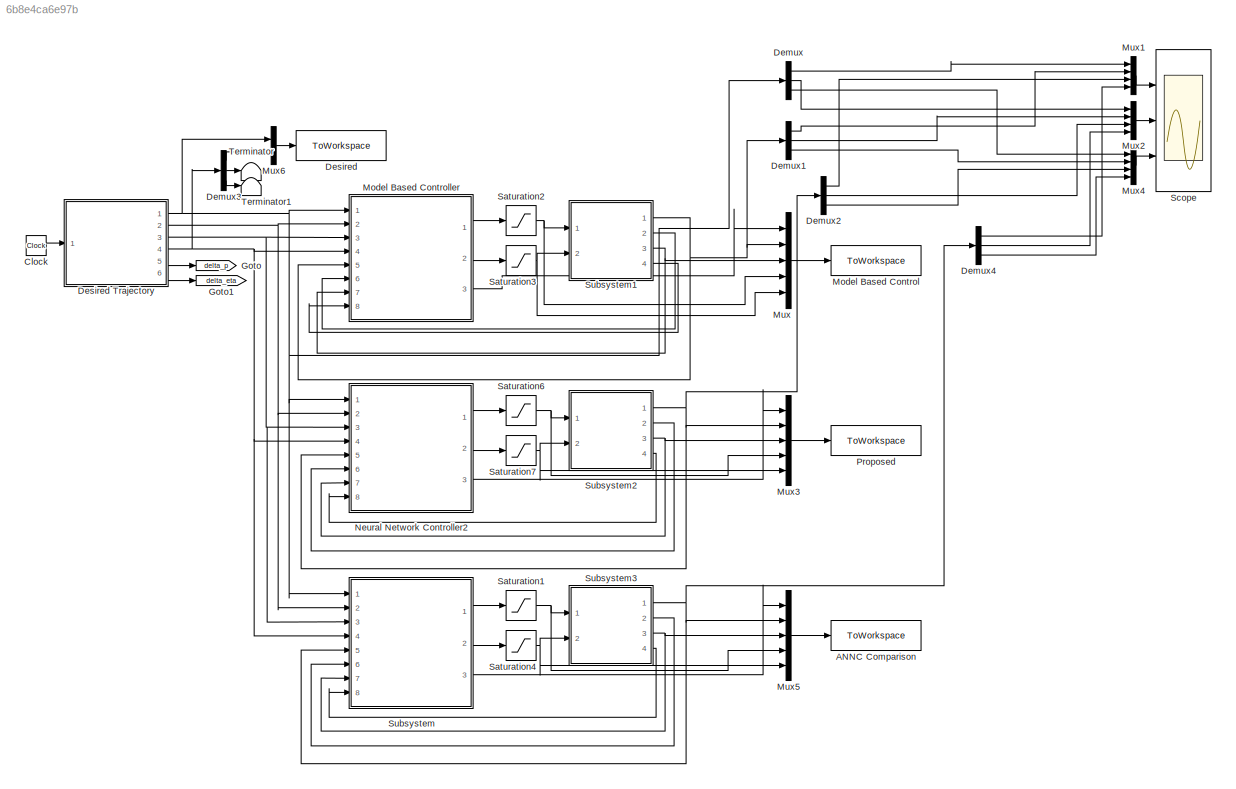
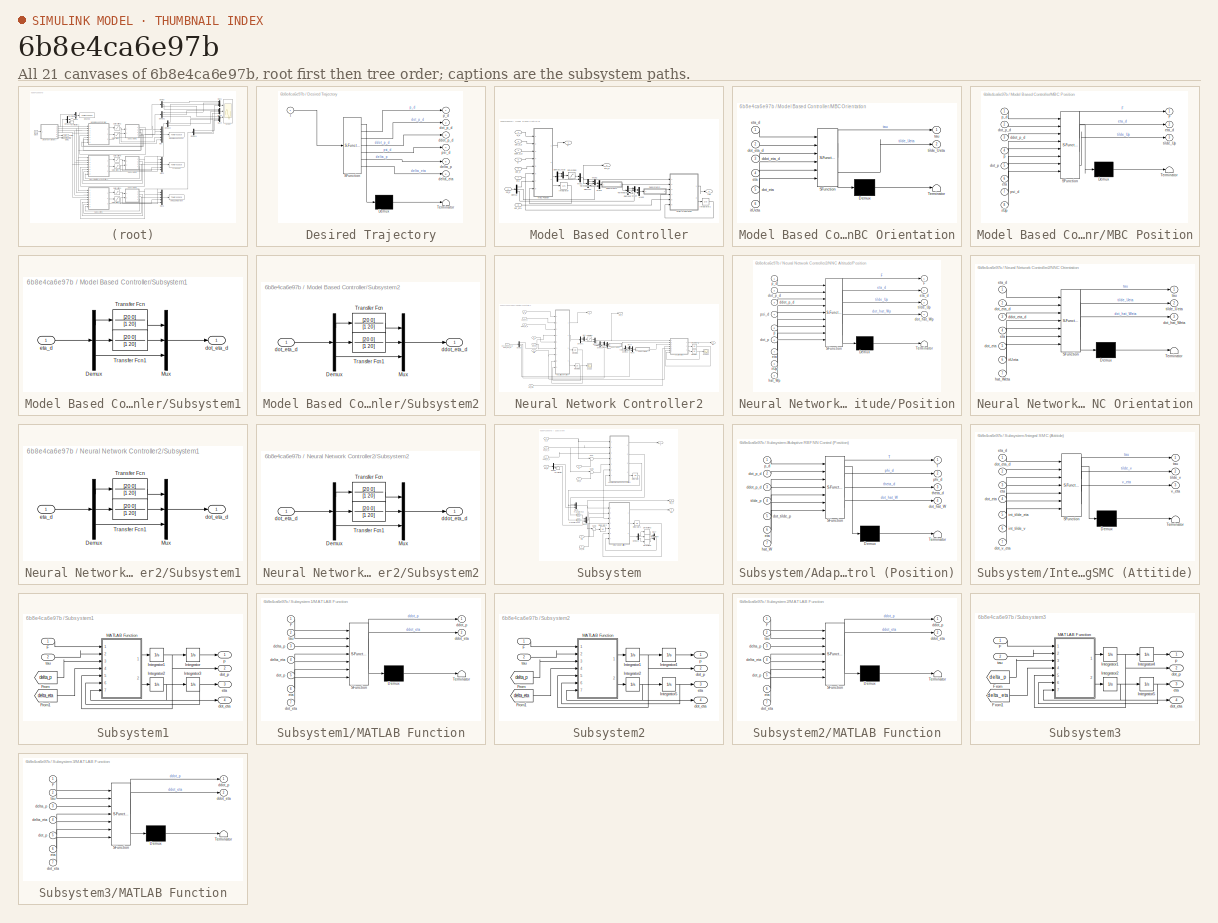
[diagram: thumbnail index - all 21 canvases of the model, root first then tree order]
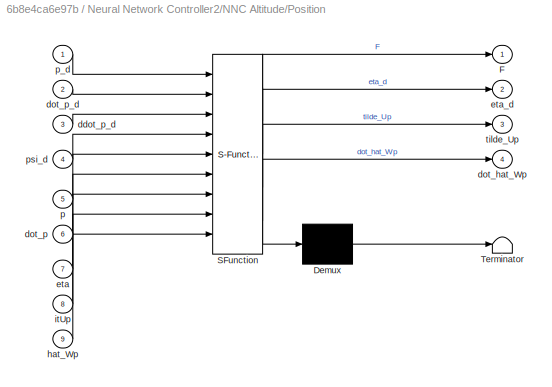
MODEL slx_6b8e4ca6e97b
KIND model
CONFIG AbsTol = auto
CONFIG EnableMultiTasking = off
CONFIG FixedStep = 1e-3
CONFIG MaxStep = auto
CONFIG MinStep = auto
CONFIG RelTol = 1e-3
CONFIG SampleTimeConstraint = Unconstrained
CONFIG SolverName = ode4
CONFIG StartTime = 0.0
CONFIG StopTime = 100
BLOCK [ToWorkspace] ANNC Comparison
  FixptAsFi = on
  MaxDataPoints = inf
  Ports = [1]
  SampleTime = -1
  SaveFormat = Structure With Time
  VariableName = ANNC_1
BLOCK [Clock] Clock
BLOCK [Demux] Demux
  Outputs = 3
  Ports = [1, 3]
BLOCK [Demux] Demux1
  Outputs = 3
  Ports = [1, 3]
BLOCK [Demux] Demux2
  Outputs = 3
  Ports = [1, 3]
BLOCK [Demux] Demux3
  Outputs = 3
  Ports = [1, 3]
BLOCK [Demux] Demux4
  Outputs = 3
  Ports = [1, 3]
BLOCK [ToWorkspace] Desired
  FixptAsFi = on
  MaxDataPoints = inf
  Ports = [1]
  SampleTime = -1
  SaveFormat = Structure With Time
  VariableName = Desired
BLOCK [SubSystem] Desired Trajectory
  ErrorFcn = Stateflow.Translate.translate
  PermitHierarchicalResolution = ExplicitOnly
  Ports = [1, 6]
  RequestExecContextInheritance = off
  SFBlockType = MATLAB Function
  TreatAsAtomicUnit = on
BLOCK [Demux] Desired Trajectory/ Demux 
  Outputs = 1
  Ports = [1, 1]
BLOCK [S-Function] Desired Trajectory/ SFunction 
  EnableBusSupport = on
  FunctionName = sf_sfun
  PortCounts = [1 7]
  Ports = [1, 7]
  SFcnIsStateOwnerBlock = off
  SFunctionDeploymentMode = off
  Tag = Stateflow S-Function 4
BLOCK [Terminator] Desired Trajectory/ Terminator 
BLOCK [Outport] Desired Trajectory/ddot_p_d
  Port = 3
BLOCK [Outport] Desired Trajectory/delta_eta
  Port = 6
BLOCK [Outport] Desired Trajectory/delta_p
  Port = 5
BLOCK [Outport] Desired Trajectory/dot_p_d
  Port = 2
BLOCK [Outport] Desired Trajectory/p_d
BLOCK [Outport] Desired Trajectory/psi_d
  Port = 4
BLOCK [Inport] Desired Trajectory/t
BLOCK [Goto] Goto
  GotoTag = delta_p
  TagVisibility = global
BLOCK [Goto] Goto1
  GotoTag = delta_eta
  TagVisibility = global
BLOCK [ToWorkspace] Model Based Control
  FixptAsFi = on
  MaxDataPoints = inf
  Ports = [1]
  SampleTime = -1
  SaveFormat = Structure With Time
  VariableName = MBC
BLOCK [SubSystem] Model Based Controller
  Ports = [8, 3]
  RequestExecContextInheritance = off
BLOCK [Demux] Model Based Controller/Demux
  Outputs = 3
  Ports = [1, 3]
BLOCK [Demux] Model Based Controller/Demux1
  Outputs = 3
  Ports = [1, 3]
BLOCK [Demux] Model Based Controller/Demux2
  Outputs = 3
  Ports = [1, 3]
BLOCK [Demux] Model Based Controller/Demux3
  Outputs = 3
  Ports = [1, 3]
BLOCK [Outport] Model Based Controller/F
BLOCK [Integrator] Model Based Controller/Integrator
  InitialCondition = [0;0;0]
  Ports = [1, 1]
BLOCK [Integrator] Model Based Controller/Integrator1
  InitialCondition = [0;0;0]
  Ports = [1, 1]
BLOCK [SubSystem] Model Based Controller/MBC Orientation
  ErrorFcn = Stateflow.Translate.translate
  PermitHierarchicalResolution = ExplicitOnly
  Ports = [6, 2]
  RequestExecContextInheritance = off
  SFBlockType = MATLAB Function
  TreatAsAtomicUnit = on
BLOCK [Demux] Model Based Controller/MBC Orientation/ Demux 
  Outputs = 1
  Ports = [1, 1]
BLOCK [S-Function] Model Based Controller/MBC Orientation/ SFunction 
  EnableBusSupport = on
  FunctionName = sf_sfun
  PortCounts = [6 3]
  Ports = [6, 3]
  SFcnIsStateOwnerBlock = off
  SFunctionDeploymentMode = off
  Tag = Stateflow S-Function 1
BLOCK [Terminator] Model Based Controller/MBC Orientation/ Terminator 
BLOCK [Inport] Model Based Controller/MBC Orientation/ddot_eta_d
  Port = 3
BLOCK [Inport] Model Based Controller/MBC Orientation/dot_eta
  Port = 5
BLOCK [Inport] Model Based Controller/MBC Orientation/dot_eta_d
  Port = 2
BLOCK [Inport] Model Based Controller/MBC Orientation/eta
  Port = 4
BLOCK [Inport] Model Based Controller/MBC Orientation/eta_d
BLOCK [Inport] Model Based Controller/MBC Orientation/itUeta
  Port = 6
BLOCK [Outport] Model Based Controller/MBC Orientation/tau
BLOCK [Outport] Model Based Controller/MBC Orientation/tilde_Ueta
  Port = 2
BLOCK [SubSystem] Model Based Controller/MBC Position
  ErrorFcn = Stateflow.Translate.translate
  PermitHierarchicalResolution = ExplicitOnly
  Ports = [8, 3]
  RequestExecContextInheritance = off
  SFBlockType = MATLAB Function
  TreatAsAtomicUnit = on
BLOCK [Demux] Model Based Controller/MBC Position/ Demux 
  Outputs = 1
  Ports = [1, 1]
BLOCK [S-Function] Model Based Controller/MBC Position/ SFunction 
  EnableBusSupport = on
  FunctionName = sf_sfun
  PortCounts = [8 4]
  Ports = [8, 4]
  SFcnIsStateOwnerBlock = off
  SFunctionDeploymentMode = off
  Tag = Stateflow S-Function 3
BLOCK [Terminator] Model Based Controller/MBC Position/ Terminator 
BLOCK [Outport] Model Based Controller/MBC Position/F
BLOCK [Inport] Model Based Controller/MBC Position/ddot_p_d
  Port = 3
BLOCK [Inport] Model Based Controller/MBC Position/dot_p
  Port = 5
BLOCK [Inport] Model Based Controller/MBC Position/dot_p_d
  Port = 2
BLOCK [Inport] Model Based Controller/MBC Position/eta
  Port = 6
BLOCK [Outport] Model Based Controller/MBC Position/eta_d
  Port = 2
BLOCK [Inport] Model Based Controller/MBC Position/itUp
  Port = 8
BLOCK [Inport] Model Based Controller/MBC Position/p
  Port = 4
BLOCK [Inport] Model Based Controller/MBC Position/p_d
BLOCK [Inport] Model Based Controller/MBC Position/psi_d
  Port = 7
BLOCK [Outport] Model Based Controller/MBC Position/tilde_Up
  Port = 3
BLOCK [Mux] Model Based Controller/Mux
  DisplayOption = bar
  Inputs = 2
  Ports = [2, 1]
BLOCK [Mux] Model Based Controller/Mux1
  DisplayOption = bar
  Inputs = 2
  Ports = [2, 1]
BLOCK [Mux] Model Based Controller/Mux2
  DisplayOption = bar
  Inputs = 2
  Ports = [2, 1]
BLOCK [Mux] Model Based Controller/Mux3
  DisplayOption = bar
  Inputs = 2
  Ports = [2, 1]
BLOCK [Mux] Model Based Controller/Mux4
  DisplayOption = bar
  Inputs = 2
  Ports = [2, 1]
BLOCK [Mux] Model Based Controller/Mux5
  DisplayOption = bar
  Inputs = 2
  Ports = [2, 1]
BLOCK [Saturate] Model Based Controller/Saturation
  LowerLimit = -20*pi/180
  UpperLimit = 20*pi/180
BLOCK [SubSystem] Model Based Controller/Subsystem1
  Ports = [1, 1]
  RequestExecContextInheritance = off
BLOCK [Demux] Model Based Controller/Subsystem1/Demux
  Outputs = 3
  Ports = [1, 3]
BLOCK [Mux] Model Based Controller/Subsystem1/Mux
  DisplayOption = bar
  Inputs = 3
  Ports = [3, 1]
BLOCK [TransferFcn] Model Based Controller/Subsystem1/Transfer Fcn
  Denominator = [1 20]
  Numerator = [20 0]
BLOCK [TransferFcn] Model Based Controller/Subsystem1/Transfer Fcn1
  Denominator = [1 20]
  Numerator = [20 0]
BLOCK [Outport] Model Based Controller/Subsystem1/dot_eta_d
BLOCK [Inport] Model Based Controller/Subsystem1/eta_d
  NameLocation = top
BLOCK [SubSystem] Model Based Controller/Subsystem2
  Ports = [1, 1]
  RequestExecContextInheritance = off
BLOCK [Demux] Model Based Controller/Subsystem2/Demux
  Outputs = 3
  Ports = [1, 3]
BLOCK [Mux] Model Based Controller/Subsystem2/Mux
  DisplayOption = bar
  Inputs = 3
  Ports = [3, 1]
BLOCK [TransferFcn] Model Based Controller/Subsystem2/Transfer Fcn
  Denominator = [1 20]
  Numerator = [20 0]
BLOCK [TransferFcn] Model Based Controller/Subsystem2/Transfer Fcn1
  Denominator = [1 20]
  Numerator = [20 0]
BLOCK [Outport] Model Based Controller/Subsystem2/ddot_eta_d
BLOCK [Inport] Model Based Controller/Subsystem2/dot_eta_d
  NameLocation = top
BLOCK [Terminator] Model Based Controller/Terminator
BLOCK [Terminator] Model Based Controller/Terminator1
BLOCK [Inport] Model Based Controller/ddot_p_d
  Port = 3
BLOCK [Inport] Model Based Controller/dot_eta
  Port = 8
BLOCK [Inport] Model Based Controller/dot_p
  Port = 6
BLOCK [Inport] Model Based Controller/dot_p_d
  Port = 2
BLOCK [Inport] Model Based Controller/eta
  Port = 7
BLOCK [Outport] Model Based Controller/eta_d
  Port = 3
BLOCK [Inport] Model Based Controller/p
  Port = 5
BLOCK [Inport] Model Based Controller/p_d
BLOCK [Inport] Model Based Controller/psi_d
  Port = 4
BLOCK [Outport] Model Based Controller/tau
  Port = 2
BLOCK [Mux] Mux
  DisplayOption = bar
  Inputs = 5
  Ports = [5, 1]
BLOCK [Mux] Mux1
  DisplayOption = bar
  Ports = [4, 1]
BLOCK [Mux] Mux2
  DisplayOption = bar
  Ports = [4, 1]
BLOCK [Mux] Mux3
  DisplayOption = bar
  Inputs = 5
  Ports = [5, 1]
BLOCK [Mux] Mux4
  DisplayOption = bar
  Ports = [4, 1]
BLOCK [Mux] Mux5
  DisplayOption = bar
  Inputs = 5
  Ports = [5, 1]
BLOCK [Mux] Mux6
  DisplayOption = bar
  Inputs = 2
  Ports = [2, 1]
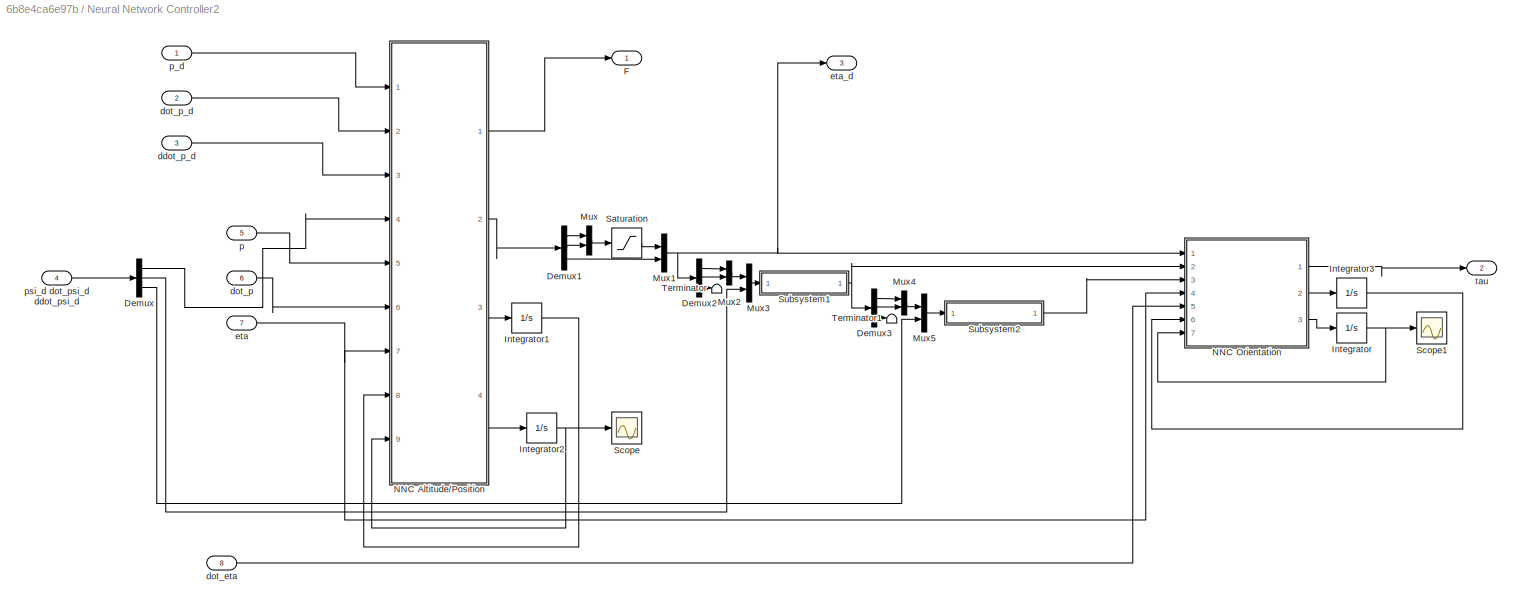
BLOCK [SubSystem] Neural Network Controller2
  Ports = [8, 3]
  RequestExecContextInheritance = off
BLOCK [Demux] Neural Network Controller2/Demux
  Outputs = 3
  Ports = [1, 3]
BLOCK [Demux] Neural Network Controller2/Demux1
  Outputs = 3
  Ports = [1, 3]
BLOCK [Demux] Neural Network Controller2/Demux2
  Outputs = 3
  Ports = [1, 3]
BLOCK [Demux] Neural Network Controller2/Demux3
  Outputs = 3
  Ports = [1, 3]
BLOCK [Outport] Neural Network Controller2/F
BLOCK [Integrator] Neural Network Controller2/Integrator
  InitialCondition = zeros(10,3)
  Ports = [1, 1]
BLOCK [Integrator] Neural Network Controller2/Integrator1
  InitialCondition = [0;0;0]
  Ports = [1, 1]
BLOCK [Integrator] Neural Network Controller2/Integrator2
  InitialCondition = zeros(10,3)
  Ports = [1, 1]
BLOCK [Integrator] Neural Network Controller2/Integrator3
  InitialCondition = [0;0;0]
  Ports = [1, 1]
BLOCK [Mux] Neural Network Controller2/Mux
  DisplayOption = bar
  Inputs = 2
  Ports = [2, 1]
BLOCK [Mux] Neural Network Controller2/Mux1
  DisplayOption = bar
  Inputs = 2
  Ports = [2, 1]
BLOCK [Mux] Neural Network Controller2/Mux2
  DisplayOption = bar
  Inputs = 2
  Ports = [2, 1]
BLOCK [Mux] Neural Network Controller2/Mux3
  DisplayOption = bar
  Inputs = 2
  Ports = [2, 1]
BLOCK [Mux] Neural Network Controller2/Mux4
  DisplayOption = bar
  Inputs = 2
  Ports = [2, 1]
BLOCK [Mux] Neural Network Controller2/Mux5
  DisplayOption = bar
  Inputs = 2
  Ports = [2, 1]
BLOCK [SubSystem] Neural Network Controller2/NNC Altitude//Position
  ErrorFcn = Stateflow.Translate.translate
  PermitHierarchicalResolution = ExplicitOnly
  Ports = [9, 4]
  RequestExecContextInheritance = off
  SFBlockType = MATLAB Function
  TreatAsAtomicUnit = on
BLOCK [Demux] Neural Network Controller2/NNC Altitude//Position/ Demux 
  Outputs = 1
  Ports = [1, 1]
BLOCK [S-Function] Neural Network Controller2/NNC Altitude//Position/ SFunction 
  EnableBusSupport = on
  FunctionName = sf_sfun
  PortCounts = [9 5]
  Ports = [9, 5]
  SFcnIsStateOwnerBlock = off
  SFunctionDeploymentMode = off
  Tag = Stateflow S-Function 11
BLOCK [Terminator] Neural Network Controller2/NNC Altitude//Position/ Terminator 
BLOCK [Outport] Neural Network Controller2/NNC Altitude//Position/F
BLOCK [Inport] Neural Network Controller2/NNC Altitude//Position/ddot_p_d
  Port = 3
BLOCK [Outport] Neural Network Controller2/NNC Altitude//Position/dot_hat_Wp
  Port = 4
BLOCK [Inport] Neural Network Controller2/NNC Altitude//Position/dot_p
  Port = 6
BLOCK [Inport] Neural Network Controller2/NNC Altitude//Position/dot_p_d
  Port = 2
BLOCK [Inport] Neural Network Controller2/NNC Altitude//Position/eta
  Port = 7
BLOCK [Outport] Neural Network Controller2/NNC Altitude//Position/eta_d
  Port = 2
BLOCK [Inport] Neural Network Controller2/NNC Altitude//Position/hat_Wp
  Port = 9
BLOCK [Inport] Neural Network Controller2/NNC Altitude//Position/itUp
  Port = 8
BLOCK [Inport] Neural Network Controller2/NNC Altitude//Position/p
  Port = 5
BLOCK [Inport] Neural Network Controller2/NNC Altitude//Position/p_d
BLOCK [Inport] Neural Network Controller2/NNC Altitude//Position/psi_d
  Port = 4
BLOCK [Outport] Neural Network Controller2/NNC Altitude//Position/tilde_Up
  Port = 3
BLOCK [SubSystem] Neural Network Controller2/NNC Orientation
  ErrorFcn = Stateflow.Translate.translate
  PermitHierarchicalResolution = ExplicitOnly
  Ports = [7, 3]
  RequestExecContextInheritance = off
  SFBlockType = MATLAB Function
  TreatAsAtomicUnit = on
BLOCK [Demux] Neural Network Controller2/NNC Orientation/ Demux 
  Outputs = 1
  Ports = [1, 1]
BLOCK [S-Function] Neural Network Controller2/NNC Orientation/ SFunction 
  EnableBusSupport = on
  FunctionName = sf_sfun
  PortCounts = [7 4]
  Ports = [7, 4]
  SFcnIsStateOwnerBlock = off
  SFunctionDeploymentMode = off
  Tag = Stateflow S-Function 12
BLOCK [Terminator] Neural Network Controller2/NNC Orientation/ Terminator 
BLOCK [Inport] Neural Network Controller2/NNC Orientation/ddot_eta_d
  Port = 3
BLOCK [Inport] Neural Network Controller2/NNC Orientation/dot_eta
  Port = 5
BLOCK [Inport] Neural Network Controller2/NNC Orientation/dot_eta_d
  Port = 2
BLOCK [Outport] Neural Network Controller2/NNC Orientation/dot_hat_Weta
  Port = 3
BLOCK [Inport] Neural Network Controller2/NNC Orientation/eta
  Port = 4
BLOCK [Inport] Neural Network Controller2/NNC Orientation/eta_d
BLOCK [Inport] Neural Network Controller2/NNC Orientation/hat_Weta
  Port = 7
BLOCK [Inport] Neural Network Controller2/NNC Orientation/itUeta
  Port = 6
BLOCK [Outport] Neural Network Controller2/NNC Orientation/tau
BLOCK [Outport] Neural Network Controller2/NNC Orientation/tilde_Ueta
  Port = 2
BLOCK [Saturate] Neural Network Controller2/Saturation
  LowerLimit = -20*pi/180
  UpperLimit = 20*pi/180
BLOCK [Scope] Neural Network Controller2/Scope
  Floating = off
  NumInputPorts = 1
  Ports = [1]
  ScopeSpecificationString = Simulink.scopes.TimeScopeBlockCfg('CurrentConfiguration', extmgr.ConfigurationSet(extmgr.Configuration('Core','General UI',true),extmgr.Configuration('Core','Source UI',true),extmgr.Configuration('Sources','WiredSimulink',true),extmgr.Configuration('Visuals','Time Domain',true,'SerializedDisplays',{struct('MinYLimReal','-0.42215','MaxYLimReal','0.43731','YLabelReal','','MinYLimMag','0.00000','MaxY...<+1847ch>
BLOCK [Scope] Neural Network Controller2/Scope1
  Floating = off
  NumInputPorts = 1
  Ports = [1]
  ScopeSpecificationString = Simulink.scopes.TimeScopeBlockCfg('CurrentConfiguration', extmgr.ConfigurationSet(extmgr.Configuration('Core','General UI',true),extmgr.Configuration('Core','Source UI',true),extmgr.Configuration('Sources','WiredSimulink',true,'DataLoggingVariableName','ScopeData1'),extmgr.Configuration('Visuals','Time Domain',true,'SerializedDisplays',{struct('MinYLimReal','-0.40705','MaxYLimReal','0.40572','YLab...<+1891ch>
BLOCK [SubSystem] Neural Network Controller2/Subsystem1
  Ports = [1, 1]
  RequestExecContextInheritance = off
BLOCK [Demux] Neural Network Controller2/Subsystem1/Demux
  Outputs = 3
  Ports = [1, 3]
BLOCK [Mux] Neural Network Controller2/Subsystem1/Mux
  DisplayOption = bar
  Inputs = 3
  Ports = [3, 1]
BLOCK [TransferFcn] Neural Network Controller2/Subsystem1/Transfer Fcn
  Denominator = [1 20]
  Numerator = [20 0]
BLOCK [TransferFcn] Neural Network Controller2/Subsystem1/Transfer Fcn1
  Denominator = [1 20]
  Numerator = [20 0]
BLOCK [Outport] Neural Network Controller2/Subsystem1/dot_eta_d
BLOCK [Inport] Neural Network Controller2/Subsystem1/eta_d
  NameLocation = top
BLOCK [SubSystem] Neural Network Controller2/Subsystem2
  Ports = [1, 1]
  RequestExecContextInheritance = off
BLOCK [Demux] Neural Network Controller2/Subsystem2/Demux
  Outputs = 3
  Ports = [1, 3]
BLOCK [Mux] Neural Network Controller2/Subsystem2/Mux
  DisplayOption = bar
  Inputs = 3
  Ports = [3, 1]
BLOCK [TransferFcn] Neural Network Controller2/Subsystem2/Transfer Fcn
  Denominator = [1 20]
  Numerator = [20 0]
BLOCK [TransferFcn] Neural Network Controller2/Subsystem2/Transfer Fcn1
  Denominator = [1 20]
  Numerator = [20 0]
BLOCK [Outport] Neural Network Controller2/Subsystem2/ddot_eta_d
BLOCK [Inport] Neural Network Controller2/Subsystem2/dot_eta_d
  NameLocation = top
BLOCK [Terminator] Neural Network Controller2/Terminator
BLOCK [Terminator] Neural Network Controller2/Terminator1
BLOCK [Inport] Neural Network Controller2/ddot_p_d
  Port = 3
BLOCK [Inport] Neural Network Controller2/dot_eta
  Port = 8
BLOCK [Inport] Neural Network Controller2/dot_p
  Port = 6
BLOCK [Inport] Neural Network Controller2/dot_p_d
  Port = 2
BLOCK [Inport] Neural Network Controller2/eta
  Port = 7
BLOCK [Outport] Neural Network Controller2/eta_d
  Port = 3
BLOCK [Inport] Neural Network Controller2/p
  Port = 5
BLOCK [Inport] Neural Network Controller2/p_d
  NameLocation = top
BLOCK [Inport] Neural Network Controller2/psi_d dot_psi_d ddot_psi_d
  Port = 4
BLOCK [Outport] Neural Network Controller2/tau
  Port = 2
BLOCK [ToWorkspace] Proposed
  FixptAsFi = on
  MaxDataPoints = inf
  Ports = [1]
  SampleTime = -1
  SaveFormat = Structure With Time
  VariableName = ANNC
BLOCK [Saturate] Saturation1
  LowerLimit = 0
  UpperLimit = 34.4
BLOCK [Saturate] Saturation2
  LowerLimit = 0
  UpperLimit = 34.4
BLOCK [Saturate] Saturation3
  LowerLimit = -1.72
  UpperLimit = 1.72
BLOCK [Saturate] Saturation4
  LowerLimit = -1.72
  UpperLimit = 1.72
BLOCK [Saturate] Saturation6
  LowerLimit = 0
  UpperLimit = 34.4
BLOCK [Saturate] Saturation7
  LowerLimit = -1.72
  UpperLimit = 1.72
BLOCK [Scope] Scope
  Floating = off
  NumInputPorts = 3
  Ports = [3]
  ScopeSpecificationString = Simulink.scopes.TimeScopeBlockCfg('CurrentConfiguration', extmgr.ConfigurationSet(extmgr.Configuration('Core','General UI',true),extmgr.Configuration('Core','Source UI',true),extmgr.Configuration('Sources','WiredSimulink',true,'DataLoggingVariableName','ScopeData1'),extmgr.Configuration('Visuals','Time Domain',true,'SerializedDisplays',{struct('MinYLimReal','-1.12182','MaxYLimReal','1.11256','YLab...<+2796ch>
BLOCK [SubSystem] Subsystem
  Ports = [8, 3]
  RequestExecContextInheritance = off
BLOCK [SubSystem] Subsystem/Adaptive RBFNN Control (Position)
  ErrorFcn = Stateflow.Translate.translate
  PermitHierarchicalResolution = ExplicitOnly
  Ports = [7, 4]
  RequestExecContextInheritance = off
  SFBlockType = MATLAB Function
  TreatAsAtomicUnit = on
BLOCK [Demux] Subsystem/Adaptive RBFNN Control (Position)/ Demux 
  Outputs = 1
  Ports = [1, 1]
BLOCK [S-Function] Subsystem/Adaptive RBFNN Control (Position)/ SFunction 
  EnableBusSupport = on
  FunctionName = sf_sfun
  PortCounts = [7 5]
  Ports = [7, 5]
  SFcnIsStateOwnerBlock = off
  SFunctionDeploymentMode = off
  Tag = Stateflow S-Function 5
BLOCK [Terminator] Subsystem/Adaptive RBFNN Control (Position)/ Terminator 
BLOCK [Outport] Subsystem/Adaptive RBFNN Control (Position)/T
  VectorParamsAs1DForOutWhenUnconnected = off
BLOCK [Inport] Subsystem/Adaptive RBFNN Control (Position)/ddot_p_d
  Port = 3
BLOCK [Outport] Subsystem/Adaptive RBFNN Control (Position)/dot_hat_W
  Port = 4
  VectorParamsAs1DForOutWhenUnconnected = off
BLOCK [Inport] Subsystem/Adaptive RBFNN Control (Position)/dot_p_d
  Port = 2
BLOCK [Inport] Subsystem/Adaptive RBFNN Control (Position)/dot_tilde_p
  Port = 5
BLOCK [Inport] Subsystem/Adaptive RBFNN Control (Position)/eta
  Port = 6
BLOCK [Inport] Subsystem/Adaptive RBFNN Control (Position)/hat_W
  Port = 7
BLOCK [Inport] Subsystem/Adaptive RBFNN Control (Position)/p_d
BLOCK [Outport] Subsystem/Adaptive RBFNN Control (Position)/phi_d
  Port = 2
  VectorParamsAs1DForOutWhenUnconnected = off
BLOCK [Outport] Subsystem/Adaptive RBFNN Control (Position)/theta_d
  Port = 3
  VectorParamsAs1DForOutWhenUnconnected = off
BLOCK [Inport] Subsystem/Adaptive RBFNN Control (Position)/tilde_p
  Port = 4
BLOCK [Demux] Subsystem/Demux
  Outputs = 3
  Ports = [1, 3]
BLOCK [Demux] Subsystem/Demux3
  Outputs = 3
  Ports = [1, 3]
BLOCK [Derivative] Subsystem/Derivative3
BLOCK [Derivative] Subsystem/Derivative4
BLOCK [Derivative] Subsystem/Derivative5
BLOCK [SubSystem] Subsystem/Integral SMC (Attitide)
  ErrorFcn = Stateflow.Translate.translate
  PermitHierarchicalResolution = ExplicitOnly
  Ports = [7, 3]
  RequestExecContextInheritance = off
  SFBlockType = MATLAB Function
  TreatAsAtomicUnit = on
BLOCK [Demux] Subsystem/Integral SMC (Attitide)/ Demux 
  Outputs = 1
  Ports = [1, 1]
BLOCK [S-Function] Subsystem/Integral SMC (Attitide)/ SFunction 
  EnableBusSupport = on
  FunctionName = sf_sfun
  PortCounts = [7 4]
  Ports = [7, 4]
  SFcnIsStateOwnerBlock = off
  SFunctionDeploymentMode = off
  Tag = Stateflow S-Function 6
BLOCK [Terminator] Subsystem/Integral SMC (Attitide)/ Terminator 
BLOCK [Inport] Subsystem/Integral SMC (Attitide)/dot_eta
  Port = 4
BLOCK [Inport] Subsystem/Integral SMC (Attitide)/dot_eta_d
  Port = 2
BLOCK [Inport] Subsystem/Integral SMC (Attitide)/dot_v_eta
  Port = 7
BLOCK [Inport] Subsystem/Integral SMC (Attitide)/eta
  Port = 3
BLOCK [Inport] Subsystem/Integral SMC (Attitide)/eta_d
BLOCK [Inport] Subsystem/Integral SMC (Attitide)/int_tilde_eta
  Port = 5
BLOCK [Inport] Subsystem/Integral SMC (Attitide)/int_tilde_v
  Port = 6
BLOCK [Outport] Subsystem/Integral SMC (Attitide)/tau
  VectorParamsAs1DForOutWhenUnconnected = off
BLOCK [Outport] Subsystem/Integral SMC (Attitide)/tilde_v
  Port = 2
  VectorParamsAs1DForOutWhenUnconnected = off
BLOCK [Outport] Subsystem/Integral SMC (Attitide)/v_eta
  Port = 3
  VectorParamsAs1DForOutWhenUnconnected = off
BLOCK [Integrator] Subsystem/Integrator
  InitialCondition = 0.005*ones(7,3)
  Ports = [1, 1]
BLOCK [Integrator] Subsystem/Integrator1
  InitialCondition = [0;0;0]
  Ports = [1, 1]
BLOCK [Integrator] Subsystem/Integrator2
  InitialCondition = [0;0;0]
  Ports = [1, 1]
BLOCK [Mux] Subsystem/Mux5
  DisplayOption = bar
  Inputs = 3
  Ports = [3, 1]
BLOCK [Mux] Subsystem/Mux6
  DisplayOption = bar
  Inputs = 3
  Ports = [3, 1]
BLOCK [Mux] Subsystem/Mux7
  DisplayOption = bar
  Inputs = 3
  Ports = [3, 1]
BLOCK [Sum] Subsystem/Sum
  Inputs = |+-
  Ports = [2, 1]
BLOCK [Sum] Subsystem/Sum1
  Inputs = |+-
  Ports = [2, 1]
BLOCK [Sum] Subsystem/Sum2
  Inputs = |+-
  Ports = [2, 1]
BLOCK [Outport] Subsystem/T
BLOCK [Terminator] Subsystem/Terminator
BLOCK [TransferFcn] Subsystem/Transfer Fcn
  Denominator = [1 20]
  Numerator = [20 0]
BLOCK [TransferFcn] Subsystem/Transfer Fcn1
  Denominator = [1 20]
  Numerator = [20 0]
BLOCK [Inport] Subsystem/ddot_p_d
  Port = 3
BLOCK [Inport] Subsystem/dot_eta
  Port = 8
BLOCK [Inport] Subsystem/dot_p
  Port = 6
BLOCK [Inport] Subsystem/dot_p_d
  Port = 2
BLOCK [Inport] Subsystem/eta
  Port = 7
BLOCK [Outport] Subsystem/eta_d
  Port = 3
BLOCK [Inport] Subsystem/p
  Port = 5
BLOCK [Inport] Subsystem/p_d
BLOCK [Inport] Subsystem/psi_d
  Port = 4
BLOCK [Outport] Subsystem/tau
  Port = 2
BLOCK [SubSystem] Subsystem1
  Ports = [2, 4]
  RequestExecContextInheritance = off
BLOCK [Inport] Subsystem1/F
BLOCK [From] Subsystem1/From
  GotoTag = delta_p
  TagVisibility = global
BLOCK [From] Subsystem1/From1
  GotoTag = delta_eta
  TagVisibility = global
BLOCK [Integrator] Subsystem1/Integrator
  InitialCondition = [0;0;0.3]
  LimitOutput = on
  LowerSaturationLimit = [-inf;-inf;0.3]
  Ports = [1, 1]
  UpperSaturationLimit = [inf;inf;inf]
BLOCK [Integrator] Subsystem1/Integrator1
  InitialCondition = [0;0;0]
  Ports = [1, 1]
BLOCK [Integrator] Subsystem1/Integrator2
  InitialCondition = [0;0;0]
  Ports = [1, 1]
BLOCK [Integrator] Subsystem1/Integrator3
  InitialCondition = [0;0;0]
  LimitOutput = on
  LowerSaturationLimit = [-pi/2; -pi/2; -inf]
  Ports = [1, 1]
  UpperSaturationLimit = [pi/2; pi/2; inf]
BLOCK [SubSystem] Subsystem1/MATLAB Function
  ErrorFcn = Stateflow.Translate.translate
  PermitHierarchicalResolution = ExplicitOnly
  Ports = [7, 2]
  RequestExecContextInheritance = off
  SFBlockType = MATLAB Function
  TreatAsAtomicUnit = on
BLOCK [Demux] Subsystem1/MATLAB Function/ Demux 
  Outputs = 1
  Ports = [1, 1]
BLOCK [S-Function] Subsystem1/MATLAB Function/ SFunction 
  EnableBusSupport = on
  FunctionName = sf_sfun
  PortCounts = [7 3]
  Ports = [7, 3]
  SFcnIsStateOwnerBlock = off
  SFunctionDeploymentMode = off
  Tag = Stateflow S-Function 2
BLOCK [Terminator] Subsystem1/MATLAB Function/ Terminator 
BLOCK [Inport] Subsystem1/MATLAB Function/F
BLOCK [Outport] Subsystem1/MATLAB Function/ddot_eta
  Port = 2
BLOCK [Outport] Subsystem1/MATLAB Function/ddot_p
BLOCK [Inport] Subsystem1/MATLAB Function/delta_eta
  Port = 4
BLOCK [Inport] Subsystem1/MATLAB Function/delta_p
  Port = 3
BLOCK [Inport] Subsystem1/MATLAB Function/dot_eta
  Port = 7
BLOCK [Inport] Subsystem1/MATLAB Function/dot_p
  Port = 5
BLOCK [Inport] Subsystem1/MATLAB Function/eta
  Port = 6
BLOCK [Inport] Subsystem1/MATLAB Function/tau
  Port = 2
BLOCK [Outport] Subsystem1/dot_eta
  Port = 4
BLOCK [Outport] Subsystem1/dot_p
  Port = 2
BLOCK [Outport] Subsystem1/eta
  Port = 3
BLOCK [Outport] Subsystem1/p
BLOCK [Inport] Subsystem1/tau
  Port = 2
BLOCK [SubSystem] Subsystem2
  Ports = [2, 4]
  RequestExecContextInheritance = off
BLOCK [Inport] Subsystem2/F
BLOCK [From] Subsystem2/From
  GotoTag = delta_p
  TagVisibility = global
BLOCK [From] Subsystem2/From1
  GotoTag = delta_eta
  TagVisibility = global
BLOCK [Integrator] Subsystem2/Integrator1
  InitialCondition = [0;0;0]
  Ports = [1, 1]
BLOCK [Integrator] Subsystem2/Integrator2
  InitialCondition = [0;0;0]
  Ports = [1, 1]
BLOCK [Integrator] Subsystem2/Integrator4
  InitialCondition = [0;0;0.3]
  LimitOutput = on
  LowerSaturationLimit = [-inf;-inf;0.3]
  Ports = [1, 1]
  UpperSaturationLimit = [inf;inf;inf]
BLOCK [Integrator] Subsystem2/Integrator5
  InitialCondition = [0;0;0]
  LimitOutput = on
  LowerSaturationLimit = [-pi/2; -pi/2; -inf]
  Ports = [1, 1]
  UpperSaturationLimit = [pi/2; pi/2; inf]
BLOCK [SubSystem] Subsystem2/MATLAB Function
  ErrorFcn = Stateflow.Translate.translate
  PermitHierarchicalResolution = ExplicitOnly
  Ports = [7, 2]
  RequestExecContextInheritance = off
  SFBlockType = MATLAB Function
  TreatAsAtomicUnit = on
BLOCK [Demux] Subsystem2/MATLAB Function/ Demux 
  Outputs = 1
  Ports = [1, 1]
BLOCK [S-Function] Subsystem2/MATLAB Function/ SFunction 
  EnableBusSupport = on
  FunctionName = sf_sfun
  PortCounts = [7 3]
  Ports = [7, 3]
  SFcnIsStateOwnerBlock = off
  SFunctionDeploymentMode = off
  Tag = Stateflow S-Function 13
BLOCK [Terminator] Subsystem2/MATLAB Function/ Terminator 
BLOCK [Inport] Subsystem2/MATLAB Function/F
BLOCK [Outport] Subsystem2/MATLAB Function/ddot_eta
  Port = 2
BLOCK [Outport] Subsystem2/MATLAB Function/ddot_p
BLOCK [Inport] Subsystem2/MATLAB Function/delta_eta
  Port = 4
BLOCK [Inport] Subsystem2/MATLAB Function/delta_p
  Port = 3
BLOCK [Inport] Subsystem2/MATLAB Function/dot_eta
  Port = 7
BLOCK [Inport] Subsystem2/MATLAB Function/dot_p
  Port = 5
BLOCK [Inport] Subsystem2/MATLAB Function/eta
  Port = 6
BLOCK [Inport] Subsystem2/MATLAB Function/tau
  Port = 2
BLOCK [Outport] Subsystem2/dot_eta
  Port = 4
BLOCK [Outport] Subsystem2/dot_p
  Port = 2
BLOCK [Outport] Subsystem2/eta
  Port = 3
BLOCK [Outport] Subsystem2/p
BLOCK [Inport] Subsystem2/tau
  Port = 2
BLOCK [SubSystem] Subsystem3
  Ports = [2, 4]
  RequestExecContextInheritance = off
BLOCK [Inport] Subsystem3/F
BLOCK [From] Subsystem3/From
  GotoTag = delta_p
  TagVisibility = global
BLOCK [From] Subsystem3/From1
  GotoTag = delta_eta
  TagVisibility = global
BLOCK [Integrator] Subsystem3/Integrator1
  InitialCondition = [0;0;0]
  Ports = [1, 1]
BLOCK [Integrator] Subsystem3/Integrator2
  InitialCondition = [0;0;0]
  Ports = [1, 1]
BLOCK [Integrator] Subsystem3/Integrator4
  InitialCondition = [0;0;0.3]
  LimitOutput = on
  LowerSaturationLimit = [-inf;-inf;0.3]
  Ports = [1, 1]
  UpperSaturationLimit = [inf;inf;inf]
BLOCK [Integrator] Subsystem3/Integrator5
  InitialCondition = [0;0;0]
  LimitOutput = on
  LowerSaturationLimit = [-pi/2; -pi/2; -inf]
  Ports = [1, 1]
  UpperSaturationLimit = [pi/2; pi/2; inf]
BLOCK [SubSystem] Subsystem3/MATLAB Function
  ErrorFcn = Stateflow.Translate.translate
  PermitHierarchicalResolution = ExplicitOnly
  Ports = [7, 2]
  RequestExecContextInheritance = off
  SFBlockType = MATLAB Function
  TreatAsAtomicUnit = on
BLOCK [Demux] Subsystem3/MATLAB Function/ Demux 
  Outputs = 1
  Ports = [1, 1]
BLOCK [S-Function] Subsystem3/MATLAB Function/ SFunction 
  EnableBusSupport = on
  FunctionName = sf_sfun
  PortCounts = [7 3]
  Ports = [7, 3]
  SFcnIsStateOwnerBlock = off
  SFunctionDeploymentMode = off
  Tag = Stateflow S-Function 7
BLOCK [Terminator] Subsystem3/MATLAB Function/ Terminator 
BLOCK [Inport] Subsystem3/MATLAB Function/F
BLOCK [Outport] Subsystem3/MATLAB Function/ddot_eta
  Port = 2
BLOCK [Outport] Subsystem3/MATLAB Function/ddot_p
BLOCK [Inport] Subsystem3/MATLAB Function/delta_eta
  Port = 4
BLOCK [Inport] Subsystem3/MATLAB Function/delta_p
  Port = 3
BLOCK [Inport] Subsystem3/MATLAB Function/dot_eta
  Port = 7
BLOCK [Inport] Subsystem3/MATLAB Function/dot_p
  Port = 5
BLOCK [Inport] Subsystem3/MATLAB Function/eta
  Port = 6
BLOCK [Inport] Subsystem3/MATLAB Function/tau
  Port = 2
BLOCK [Outport] Subsystem3/dot_eta
  Port = 4
BLOCK [Outport] Subsystem3/dot_p
  Port = 2
BLOCK [Outport] Subsystem3/eta
  Port = 3
BLOCK [Outport] Subsystem3/p
BLOCK [Inport] Subsystem3/tau
  Port = 2
BLOCK [Terminator] Terminator
BLOCK [Terminator] Terminator1
LINE Clock:1 -> Desired Trajectory:1
LINE Demux1:1 -> Mux1:2
LINE Demux1:2 -> Mux2:2
LINE Demux1:3 -> Mux4:2
LINE Demux2:1 -> Mux1:3
LINE Demux2:2 -> Mux2:3
LINE Demux2:3 -> Mux4:3
LINE Demux3:1 -> Mux6:2
LINE Demux3:2 -> Terminator:1
LINE Demux3:3 -> Terminator1:1
LINE Demux4:1 -> Mux1:4
LINE Demux4:2 -> Mux2:4
LINE Demux4:3 -> Mux4:4
LINE Demux:1 -> Mux1:1
LINE Demux:2 -> Mux2:1
LINE Demux:3 -> Mux4:1
NET Desired Trajectory:1 -> Demux:1, Model Based Controller:1, Mux6:1, Neural Network Controller2:1, Subsystem:1
NET Desired Trajectory:2 -> Model Based Controller:2, Neural Network Controller2:2, Subsystem:2
NET Desired Trajectory:3 -> Model Based Controller:3, Neural Network Controller2:3, Subsystem:3
NET Desired Trajectory:4 -> Demux3:1, Model Based Controller:4, Neural Network Controller2:4, Subsystem:4
LINE Desired Trajectory:5 -> Goto:1
LINE Desired Trajectory:6 -> Goto1:1
LINE Model Based Controller/Demux1:1 -> Model Based Controller/Mux:1
LINE Model Based Controller/Demux1:2 -> Model Based Controller/Mux:2
LINE Model Based Controller/Demux1:3 -> Model Based Controller/Mux1:2
LINE Model Based Controller/Demux2:1 -> Model Based Controller/Mux2:1
LINE Model Based Controller/Demux2:2 -> Model Based Controller/Mux2:2
LINE Model Based Controller/Demux2:3 -> Model Based Controller/Terminator:1
LINE Model Based Controller/Demux3:1 -> Model Based Controller/Mux4:1
LINE Model Based Controller/Demux3:2 -> Model Based Controller/Mux4:2
LINE Model Based Controller/Demux3:3 -> Model Based Controller/Terminator1:1
LINE Model Based Controller/Demux:1 -> Model Based Controller/MBC Position:7
LINE Model Based Controller/Demux:2 -> Model Based Controller/Mux3:2
LINE Model Based Controller/Demux:3 -> Model Based Controller/Mux5:2
LINE Model Based Controller/Integrator1:1 -> Model Based Controller/MBC Orientation:6
LINE Model Based Controller/Integrator:1 -> Model Based Controller/MBC Position:8
LINE Model Based Controller/MBC Orientation:1 -> Model Based Controller/tau:1
LINE Model Based Controller/MBC Orientation:2 -> Model Based Controller/Integrator1:1
LINE Model Based Controller/MBC Position:1 -> Model Based Controller/F:1
LINE Model Based Controller/MBC Position:2 -> Model Based Controller/Demux1:1
LINE Model Based Controller/MBC Position:3 -> Model Based Controller/Integrator:1
NET Model Based Controller/Mux1:1 -> Model Based Controller/Demux2:1, Model Based Controller/MBC Orientation:1, Model Based Controller/eta_d:1
LINE Model Based Controller/Mux2:1 -> Model Based Controller/Mux3:1
LINE Model Based Controller/Mux3:1 -> Model Based Controller/Subsystem1:1
LINE Model Based Controller/Mux4:1 -> Model Based Controller/Mux5:1
LINE Model Based Controller/Mux5:1 -> Model Based Controller/Subsystem2:1
LINE Model Based Controller/Mux:1 -> Model Based Controller/Saturation:1
LINE Model Based Controller/Saturation:1 -> Model Based Controller/Mux1:1
LINE Model Based Controller/Subsystem1/Demux:1 -> Model Based Controller/Subsystem1/Transfer Fcn:1
LINE Model Based Controller/Subsystem1/Demux:2 -> Model Based Controller/Subsystem1/Transfer Fcn1:1
LINE Model Based Controller/Subsystem1/Demux:3 -> Model Based Controller/Subsystem1/Mux:3
LINE Model Based Controller/Subsystem1/Mux:1 -> Model Based Controller/Subsystem1/dot_eta_d:1
LINE Model Based Controller/Subsystem1/Transfer Fcn1:1 -> Model Based Controller/Subsystem1/Mux:2
LINE Model Based Controller/Subsystem1/Transfer Fcn:1 -> Model Based Controller/Subsystem1/Mux:1
LINE Model Based Controller/Subsystem1/eta_d:1 -> Model Based Controller/Subsystem1/Demux:1
NET Model Based Controller/Subsystem1:1 -> Model Based Controller/Demux3:1, Model Based Controller/MBC Orientation:2
LINE Model Based Controller/Subsystem2/Demux:1 -> Model Based Controller/Subsystem2/Transfer Fcn:1
LINE Model Based Controller/Subsystem2/Demux:2 -> Model Based Controller/Subsystem2/Transfer Fcn1:1
LINE Model Based Controller/Subsystem2/Demux:3 -> Model Based Controller/Subsystem2/Mux:3
LINE Model Based Controller/Subsystem2/Mux:1 -> Model Based Controller/Subsystem2/ddot_eta_d:1
LINE Model Based Controller/Subsystem2/Transfer Fcn1:1 -> Model Based Controller/Subsystem2/Mux:2
LINE Model Based Controller/Subsystem2/Transfer Fcn:1 -> Model Based Controller/Subsystem2/Mux:1
LINE Model Based Controller/Subsystem2/dot_eta_d:1 -> Model Based Controller/Subsystem2/Demux:1
LINE Model Based Controller/Subsystem2:1 -> Model Based Controller/MBC Orientation:3
LINE Model Based Controller/ddot_p_d:1 -> Model Based Controller/MBC Position:3
LINE Model Based Controller/dot_eta:1 -> Model Based Controller/MBC Orientation:5
LINE Model Based Controller/dot_p:1 -> Model Based Controller/MBC Position:5
LINE Model Based Controller/dot_p_d:1 -> Model Based Controller/MBC Position:2
NET Model Based Controller/eta:1 -> Model Based Controller/MBC Orientation:4, Model Based Controller/MBC Position:6
LINE Model Based Controller/p:1 -> Model Based Controller/MBC Position:4
LINE Model Based Controller/p_d:1 -> Model Based Controller/MBC Position:1
LINE Model Based Controller/psi_d:1 -> Model Based Controller/Demux:1
LINE Model Based Controller:1 -> Saturation2:1
LINE Model Based Controller:2 -> Saturation3:1
LINE Model Based Controller:3 -> Mux:1
LINE Mux1:1 -> Scope:1
LINE Mux2:1 -> Scope:2
LINE Mux3:1 -> Proposed:1
LINE Mux4:1 -> Scope:3
LINE Mux5:1 -> ANNC Comparison:1
LINE Mux6:1 -> Desired:1
LINE Mux:1 -> Model Based Control:1
LINE Neural Network Controller2/Demux1:1 -> Neural Network Controller2/Mux:1
LINE Neural Network Controller2/Demux1:2 -> Neural Network Controller2/Mux:2
LINE Neural Network Controller2/Demux1:3 -> Neural Network Controller2/Mux1:2
LINE Neural Network Controller2/Demux2:1 -> Neural Network Controller2/Mux2:1
LINE Neural Network Controller2/Demux2:2 -> Neural Network Controller2/Mux2:2
LINE Neural Network Controller2/Demux2:3 -> Neural Network Controller2/Terminator:1
LINE Neural Network Controller2/Demux3:1 -> Neural Network Controller2/Mux4:1
LINE Neural Network Controller2/Demux3:2 -> Neural Network Controller2/Mux4:2
LINE Neural Network Controller2/Demux3:3 -> Neural Network Controller2/Terminator1:1
LINE Neural Network Controller2/Demux:1 -> Neural Network Controller2/NNC Altitude//Position:4
LINE Neural Network Controller2/Demux:2 -> Neural Network Controller2/Mux3:2
LINE Neural Network Controller2/Demux:3 -> Neural Network Controller2/Mux5:2
LINE Neural Network Controller2/Integrator1:1 -> Neural Network Controller2/NNC Altitude//Position:8
NET Neural Network Controller2/Integrator2:1 -> Neural Network Controller2/NNC Altitude//Position:9, Neural Network Controller2/Scope:1
LINE Neural Network Controller2/Integrator3:1 -> Neural Network Controller2/NNC Orientation:6
NET Neural Network Controller2/Integrator:1 -> Neural Network Controller2/NNC Orientation:7, Neural Network Controller2/Scope1:1
NET Neural Network Controller2/Mux1:1 -> Neural Network Controller2/Demux2:1, Neural Network Controller2/NNC Orientation:1, Neural Network Controller2/eta_d:1
LINE Neural Network Controller2/Mux2:1 -> Neural Network Controller2/Mux3:1
LINE Neural Network Controller2/Mux3:1 -> Neural Network Controller2/Subsystem1:1
LINE Neural Network Controller2/Mux4:1 -> Neural Network Controller2/Mux5:1
LINE Neural Network Controller2/Mux5:1 -> Neural Network Controller2/Subsystem2:1
LINE Neural Network Controller2/Mux:1 -> Neural Network Controller2/Saturation:1
LINE Neural Network Controller2/NNC Altitude//Position:1 -> Neural Network Controller2/F:1
LINE Neural Network Controller2/NNC Altitude//Position:2 -> Neural Network Controller2/Demux1:1
LINE Neural Network Controller2/NNC Altitude//Position:3 -> Neural Network Controller2/Integrator1:1
LINE Neural Network Controller2/NNC Altitude//Position:4 -> Neural Network Controller2/Integrator2:1
LINE Neural Network Controller2/NNC Orientation:1 -> Neural Network Controller2/tau:1
LINE Neural Network Controller2/NNC Orientation:2 -> Neural Network Controller2/Integrator3:1
LINE Neural Network Controller2/NNC Orientation:3 -> Neural Network Controller2/Integrator:1
LINE Neural Network Controller2/Saturation:1 -> Neural Network Controller2/Mux1:1
LINE Neural Network Controller2/Subsystem1/Demux:1 -> Neural Network Controller2/Subsystem1/Transfer Fcn:1
LINE Neural Network Controller2/Subsystem1/Demux:2 -> Neural Network Controller2/Subsystem1/Transfer Fcn1:1
LINE Neural Network Controller2/Subsystem1/Demux:3 -> Neural Network Controller2/Subsystem1/Mux:3
LINE Neural Network Controller2/Subsystem1/Mux:1 -> Neural Network Controller2/Subsystem1/dot_eta_d:1
LINE Neural Network Controller2/Subsystem1/Transfer Fcn1:1 -> Neural Network Controller2/Subsystem1/Mux:2
LINE Neural Network Controller2/Subsystem1/Transfer Fcn:1 -> Neural Network Controller2/Subsystem1/Mux:1
LINE Neural Network Controller2/Subsystem1/eta_d:1 -> Neural Network Controller2/Subsystem1/Demux:1
NET Neural Network Controller2/Subsystem1:1 -> Neural Network Controller2/Demux3:1, Neural Network Controller2/NNC Orientation:2
LINE Neural Network Controller2/Subsystem2/Demux:1 -> Neural Network Controller2/Subsystem2/Transfer Fcn:1
LINE Neural Network Controller2/Subsystem2/Demux:2 -> Neural Network Controller2/Subsystem2/Transfer Fcn1:1
LINE Neural Network Controller2/Subsystem2/Demux:3 -> Neural Network Controller2/Subsystem2/Mux:3
LINE Neural Network Controller2/Subsystem2/Mux:1 -> Neural Network Controller2/Subsystem2/ddot_eta_d:1
LINE Neural Network Controller2/Subsystem2/Transfer Fcn1:1 -> Neural Network Controller2/Subsystem2/Mux:2
LINE Neural Network Controller2/Subsystem2/Transfer Fcn:1 -> Neural Network Controller2/Subsystem2/Mux:1
LINE Neural Network Controller2/Subsystem2/dot_eta_d:1 -> Neural Network Controller2/Subsystem2/Demux:1
LINE Neural Network Controller2/Subsystem2:1 -> Neural Network Controller2/NNC Orientation:3
LINE Neural Network Controller2/ddot_p_d:1 -> Neural Network Controller2/NNC Altitude//Position:3
LINE Neural Network Controller2/dot_eta:1 -> Neural Network Controller2/NNC Orientation:5
LINE Neural Network Controller2/dot_p:1 -> Neural Network Controller2/NNC Altitude//Position:6
LINE Neural Network Controller2/dot_p_d:1 -> Neural Network Controller2/NNC Altitude//Position:2
NET Neural Network Controller2/eta:1 -> Neural Network Controller2/NNC Altitude//Position:7, Neural Network Controller2/NNC Orientation:4
LINE Neural Network Controller2/p:1 -> Neural Network Controller2/NNC Altitude//Position:5
LINE Neural Network Controller2/p_d:1 -> Neural Network Controller2/NNC Altitude//Position:1
LINE Neural Network Controller2/psi_d dot_psi_d ddot_psi_d:1 -> Neural Network Controller2/Demux:1
LINE Neural Network Controller2:1 -> Saturation6:1
LINE Neural Network Controller2:2 -> Saturation7:1
LINE Neural Network Controller2:3 -> Mux3:1
NET Saturation1:1 -> Mux5:4, Subsystem3:1
NET Saturation2:1 -> Mux:4, Subsystem1:1
NET Saturation3:1 -> Mux:5, Subsystem1:2
NET Saturation4:1 -> Mux5:5, Subsystem3:2
NET Saturation6:1 -> Mux3:4, Subsystem2:1
NET Saturation7:1 -> Mux3:5, Subsystem2:2
LINE Subsystem/Adaptive RBFNN Control (Position):1 -> Subsystem/T:1
NET Subsystem/Adaptive RBFNN Control (Position):2 -> Subsystem/Mux5:1, Subsystem/Transfer Fcn:1
NET Subsystem/Adaptive RBFNN Control (Position):3 -> Subsystem/Mux5:2, Subsystem/Transfer Fcn1:1
LINE Subsystem/Adaptive RBFNN Control (Position):4 -> Subsystem/Integrator:1
LINE Subsystem/Demux3:1 -> Subsystem/Derivative3:1
LINE Subsystem/Demux3:2 -> Subsystem/Derivative4:1
LINE Subsystem/Demux3:3 -> Subsystem/Derivative5:1
LINE Subsystem/Demux:1 -> Subsystem/Mux5:3
LINE Subsystem/Demux:2 -> Subsystem/Mux6:3
LINE Subsystem/Demux:3 -> Subsystem/Terminator:1
LINE Subsystem/Derivative3:1 -> Subsystem/Mux7:1
LINE Subsystem/Derivative4:1 -> Subsystem/Mux7:2
LINE Subsystem/Derivative5:1 -> Subsystem/Mux7:3
LINE Subsystem/Integral SMC (Attitide):1 -> Subsystem/tau:1
LINE Subsystem/Integral SMC (Attitide):2 -> Subsystem/Integrator1:1
LINE Subsystem/Integral SMC (Attitide):3 -> Subsystem/Demux3:1
LINE Subsystem/Integrator1:1 -> Subsystem/Integral SMC (Attitide):6
LINE Subsystem/Integrator2:1 -> Subsystem/Integral SMC (Attitide):5
LINE Subsystem/Integrator:1 -> Subsystem/Adaptive RBFNN Control (Position):7
NET Subsystem/Mux5:1 -> Subsystem/Integral SMC (Attitide):1, Subsystem/Sum2:1, Subsystem/eta_d:1
LINE Subsystem/Mux6:1 -> Subsystem/Integral SMC (Attitide):2
LINE Subsystem/Mux7:1 -> Subsystem/Integral SMC (Attitide):7
LINE Subsystem/Sum1:1 -> Subsystem/Adaptive RBFNN Control (Position):5
LINE Subsystem/Sum2:1 -> Subsystem/Integrator2:1
LINE Subsystem/Sum:1 -> Subsystem/Adaptive RBFNN Control (Position):4
LINE Subsystem/Transfer Fcn1:1 -> Subsystem/Mux6:2
LINE Subsystem/Transfer Fcn:1 -> Subsystem/Mux6:1
LINE Subsystem/ddot_p_d:1 -> Subsystem/Adaptive RBFNN Control (Position):3
LINE Subsystem/dot_eta:1 -> Subsystem/Integral SMC (Attitide):4
LINE Subsystem/dot_p:1 -> Subsystem/Sum1:2
NET Subsystem/dot_p_d:1 -> Subsystem/Adaptive RBFNN Control (Position):2, Subsystem/Sum1:1
NET Subsystem/eta:1 -> Subsystem/Adaptive RBFNN Control (Position):6, Subsystem/Integral SMC (Attitide):3, Subsystem/Sum2:2
LINE Subsystem/p:1 -> Subsystem/Sum:2
NET Subsystem/p_d:1 -> Subsystem/Adaptive RBFNN Control (Position):1, Subsystem/Sum:1
LINE Subsystem/psi_d:1 -> Subsystem/Demux:1
LINE Subsystem1/F:1 -> Subsystem1/MATLAB Function:1
LINE Subsystem1/From1:1 -> Subsystem1/MATLAB Function:4
LINE Subsystem1/From:1 -> Subsystem1/MATLAB Function:3
NET Subsystem1/Integrator1:1 -> Subsystem1/Integrator:1, Subsystem1/MATLAB Function:5, Subsystem1/dot_p:1
NET Subsystem1/Integrator2:1 -> Subsystem1/Integrator3:1, Subsystem1/MATLAB Function:7, Subsystem1/dot_eta:1
NET Subsystem1/Integrator3:1 -> Subsystem1/MATLAB Function:6, Subsystem1/eta:1
LINE Subsystem1/Integrator:1 -> Subsystem1/p:1
LINE Subsystem1/MATLAB Function:1 -> Subsystem1/Integrator1:1
LINE Subsystem1/MATLAB Function:2 -> Subsystem1/Integrator2:1
LINE Subsystem1/tau:1 -> Subsystem1/MATLAB Function:2
NET Subsystem1:1 -> Demux1:1, Model Based Controller:5, Mux:2
LINE Subsystem1:2 -> Model Based Controller:6
NET Subsystem1:3 -> Model Based Controller:7, Mux:3
LINE Subsystem1:4 -> Model Based Controller:8
LINE Subsystem2/F:1 -> Subsystem2/MATLAB Function:1
LINE Subsystem2/From1:1 -> Subsystem2/MATLAB Function:4
LINE Subsystem2/From:1 -> Subsystem2/MATLAB Function:3
NET Subsystem2/Integrator1:1 -> Subsystem2/Integrator4:1, Subsystem2/MATLAB Function:5, Subsystem2/dot_p:1
NET Subsystem2/Integrator2:1 -> Subsystem2/Integrator5:1, Subsystem2/MATLAB Function:7, Subsystem2/dot_eta:1
LINE Subsystem2/Integrator4:1 -> Subsystem2/p:1
NET Subsystem2/Integrator5:1 -> Subsystem2/MATLAB Function:6, Subsystem2/eta:1
LINE Subsystem2/MATLAB Function:1 -> Subsystem2/Integrator1:1
LINE Subsystem2/MATLAB Function:2 -> Subsystem2/Integrator2:1
LINE Subsystem2/tau:1 -> Subsystem2/MATLAB Function:2
NET Subsystem2:1 -> Demux2:1, Mux3:2, Neural Network Controller2:5
LINE Subsystem2:2 -> Neural Network Controller2:6
NET Subsystem2:3 -> Mux3:3, Neural Network Controller2:7
LINE Subsystem2:4 -> Neural Network Controller2:8
LINE Subsystem3/F:1 -> Subsystem3/MATLAB Function:1
LINE Subsystem3/From1:1 -> Subsystem3/MATLAB Function:4
LINE Subsystem3/From:1 -> Subsystem3/MATLAB Function:3
NET Subsystem3/Integrator1:1 -> Subsystem3/Integrator4:1, Subsystem3/MATLAB Function:5, Subsystem3/dot_p:1
NET Subsystem3/Integrator2:1 -> Subsystem3/Integrator5:1, Subsystem3/MATLAB Function:7, Subsystem3/dot_eta:1
LINE Subsystem3/Integrator4:1 -> Subsystem3/p:1
NET Subsystem3/Integrator5:1 -> Subsystem3/MATLAB Function:6, Subsystem3/eta:1
LINE Subsystem3/MATLAB Function:1 -> Subsystem3/Integrator1:1
LINE Subsystem3/MATLAB Function:2 -> Subsystem3/Integrator2:1
LINE Subsystem3/tau:1 -> Subsystem3/MATLAB Function:2
NET Subsystem3:1 -> Demux4:1, Mux5:2, Subsystem:5
LINE Subsystem3:2 -> Subsystem:6
NET Subsystem3:3 -> Mux5:3, Subsystem:7
LINE Subsystem3:4 -> Subsystem:8
LINE Subsystem:1 -> Saturation1:1
LINE Subsystem:2 -> Saturation4:1
LINE Subsystem:3 -> Mux5:1
note: NET lines group one-source signal fan-out (src -> all destinations, sorted); 1:1 wires keep LINE
CHART Subsystem3/MATLAB Function states=1 transitions=1
  STATE_LABEL 'eML_blk_kernel()'
  STATE_LABEL 'SCRIPT:\nfunction [ddot_p, ddot_eta] = fcn(F, tau, delta_p, delta_eta, dot_p, eta, dot_eta)\n\nm  = 1.79;\ng  = 9.81;\nIxx = 0.03; Iyy = 0.03; Izz = 0.04;\ndx = 0.002; dy = 0.002; dz = 0.004;\nd_phi = 0.002; d_theta = 0.002; d_psi = 0.004;\nI  = diag([Ixx Iyy Izz]);\nDp = diag([dx dy dz]);\nDn = diag([d_phi d_theta d_psi]);\nVz = [0; 0; 1];\n\nphi     = eta(1);     theta     = eta(2);     psi = eta(3);\ndot_phi...<+1439ch>'  <repeated x3 — deduplicated; at blocks: MATLAB Function>
CHART Neural Network Controller2/NNC Altitude//Position states=1 transitions=1
  STATE_LABEL 'eML_blk_kernel()'
  STATE_LABEL 'SCRIPT:\nfunction [F, eta_d, tilde_Up, dot_hat_Wp] = fcn(p_d, dot_p_d, ddot_p_d, psi_d, p, dot_p, eta, itUp, hat_Wp)\nm       = 1.79;\ng       = 9.81;\ngz      = [0; 0; g];\nphi     = eta(1);\ntheta   = eta(2);\ne_p     = p_d - p;\ndot_e_p = dot_p_d - dot_p;\n%% Position controller %%%\n%%% Gains %%%\nhat_m = 0.85*m; % mass uncertainty\nKUp   = diag([0.75 0.75 10]);\nKip   = diag([0.2 0.2 0.75]);\nKp    = diag(...<+1898ch>'
CHART Neural Network Controller2/NNC Orientation states=1 transitions=1
  STATE_LABEL 'eML_blk_kernel()'
  STATE_LABEL 'SCRIPT:\nfunction [tau, tilde_Ueta, dot_hat_Weta] = fcn(eta_d, dot_eta_d, ddot_eta_d, eta, dot_eta, itUeta, hat_Weta)\n\nphi = eta(1) ; theta = eta(2);\n%% Gains\nK_Ueta = 2*diag([1 1 1]);\nK_ieta = 0.05*diag([1 1 1]);\nK_eta  = 5*diag([1 1 1]);\n%% Attitude Controller\ne_eta     = eta_d - eta;\ndot_e_eta = dot_eta_d - dot_eta;\n\nUeta       = dot_eta_d + K_eta*e_eta;\ndot_Ueta   = ddot_eta_d + K_eta*dot_e_eta...<+1619ch>'
CHART Subsystem2/MATLAB Function states=1 transitions=1
  STATE_LABEL 'eML_blk_kernel()'
CHART Model Based Controller/MBC Orientation states=1 transitions=1
  STATE_LABEL 'eML_blk_kernel()'
  STATE_LABEL 'SCRIPT:\nfunction [tau, tilde_Ueta] = fcn(eta_d, dot_eta_d, ddot_eta_d, eta, dot_eta,itUeta)\n\nphi     = eta(1);     theta = eta(2);\ndot_phi = dot_eta(1); dot_theta = dot_eta(2);\nIxx = 0.03; Iyy = 0.03; Izz = 0.04;\nd_phi = 0.002; d_theta = 0.002; d_psi = 0.004;\nI  = diag([Ixx Iyy Izz]);\nDn = diag([d_phi d_theta d_psi]);\n%% Gains\nK1eta = 2*diag([1 1 1]);\nK2eta = 0.05*diag([1 1 1]);\nK3eta = 5*diag([1 ...<+1189ch>'
CHART Subsystem1/MATLAB Function states=1 transitions=1
  STATE_LABEL 'eML_blk_kernel()'
CHART Model Based Controller/MBC Position states=1 transitions=1
  STATE_LABEL 'eML_blk_kernel()'
  STATE_LABEL 'SCRIPT:\nfunction [F, eta_d, tilde_Up] = fcn(p_d, dot_p_d, ddot_p_d, p, dot_p, eta, psi_d, itUp)\nm  = 0.85*1.79;\ng  = 9.81;\ngz = [0; 0; g];\ndx = 0.002; dy = 0.002; dz = 0.004;\nDp = diag([dx dy dz]);\nphi = eta(1) ; theta = eta(2);\n\ne_p     = p_d - p;\ndot_e_p = dot_p_d - dot_p;\n%% Position Controller\n%Gains\nK1p = diag([0.75 0.75 10]);\nK2p = diag([0.2 0.2 0.75]);\nK3p = diag([1.75 1.75 12]);\n\nUp       ...<+373ch>'
CHART Desired Trajectory states=1 transitions=1
  STATE_LABEL 'eML_blk_kernel()'
  STATE_LABEL 'SCRIPT:\nfunction [p_d, dot_p_d, ddot_p_d, psi_d, delta_p, delta_eta] = fcn(t)\nz0    = 0.3;\nh     = 1.4;\n%% Circunferencia\n% ampx = 1;\n% ampy = 1;\n% ampz = 0.1;\n% amps = 10*pi/180;\n% frecx = 2*pi/5;\n% frecy = 2*pi/5;\n% frecz = 2*pi/5;\n% frecs = 2*pi/5;\n\n%% Lemniscata 1\n% \n% ampx = 0.5;\n% ampy = 1;\n% ampz = 0.4;\n% amps = 5*pi/180;\n% frecx = 2*pi/4;\n% frecy = 2*pi/8;\n% frecz = 2*pi/4;\n% frecs = 2*pi/...<+1935ch>'
CHART Subsystem/Adaptive RBFNN Control
(Position) states=1 transitions=1
  STATE_LABEL 'eML_blk_kernel()'
  STATE_LABEL 'SCRIPT:\nfunction [T, phi_d,theta_d,dot_hat_W] = fcn(p_d, dot_p_d, ddot_p_d, tilde_p, dot_tilde_p, eta, hat_W)\nm = 0.85*1.79;\ng = 9.81;\n%% RBFNN parameters\nc      = [-1.5,-1,-0.5,0,0.5,1,1.5];\nsigma  = 5*ones(length(c),1);\nLambda = diag([2.55 2.55 3.55]);\nA      = 0.15;\nKv     = 1.257;\n%%\nphi   = eta(1);\ntheta = eta(2);\npsi   = eta(3);\n\nM  = diag([1/m 1/m cos(phi)*cos(theta)/m]);\ne3 = [0;0;1];\n\nXin...<+417ch>'
CHART Subsystem/Integral SMC
(Attitide) states=1 transitions=1
  STATE_LABEL 'eML_blk_kernel()'
  STATE_LABEL 'SCRIPT:\nfunction [tau, tilde_v, v_eta]  = fcn(eta_d, dot_eta_d, eta, dot_eta, int_tilde_eta, int_tilde_v, dot_v_eta)\n\nIxx = 0.03;\nIyy = Ixx;\nIzz = 0.04;\n\nkw    = 4.5;\nkn    = 15;\nrho_w = 0.000001;\nrho_n = 0.0001;\n\nphi   = eta(1);\ntheta = eta(2);\n\ndot_phi   = dot_eta(1);\ndot_theta = dot_eta(2);\ndot_psi   = dot_eta(3);\n\nM_eta = [Ixx 0 -Ixx*sin(theta);\n         0 Iyy*cos(phi)^2+Izz*sin(phi)^2 (Iyy-Iz...<+1645ch>'
CHART  states=0 transitions=0
CHART  states=0 transitions=0
CHART  states=0 transitions=0
CHART  states=0 transitions=0
CHART  states=0 transitions=0
CHART  states=0 transitions=0
CHART  states=0 transitions=0
CHART  states=0 transitions=0
CHART  states=0 transitions=0
CHART  states=0 transitions=0
